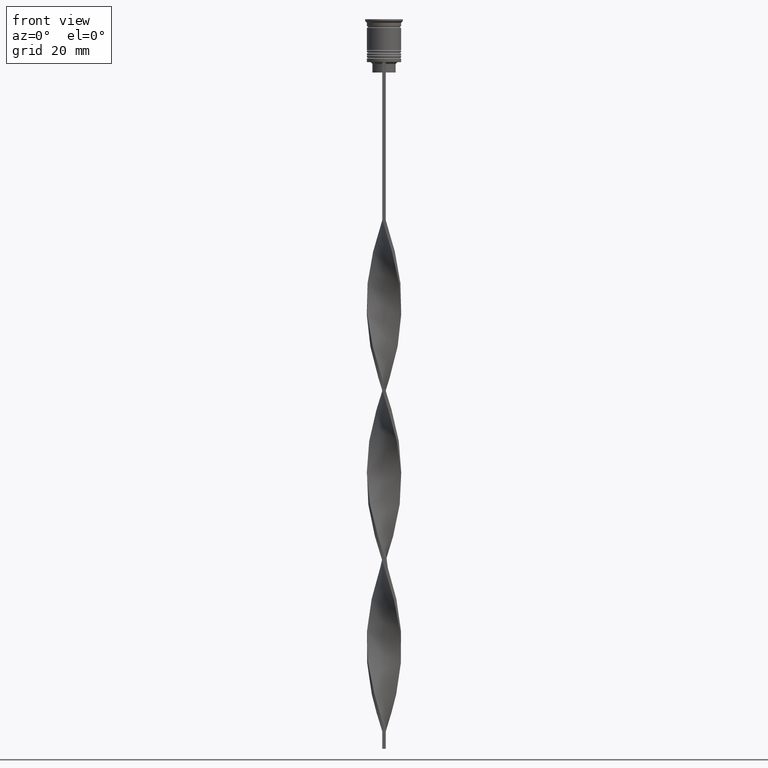
[diagram: clean part render]
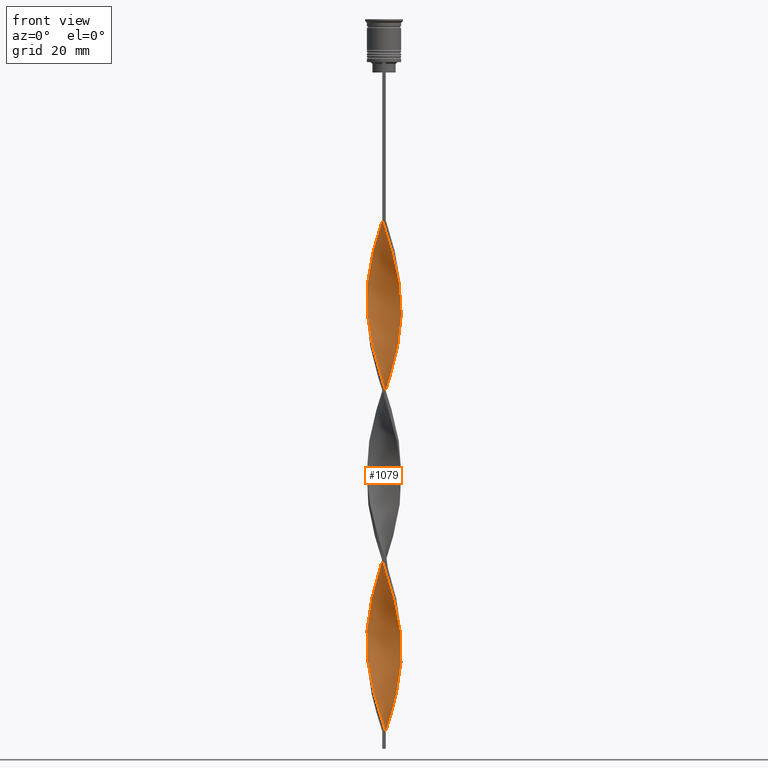
[diagram: same view with one face highlighted and labeled with its STEP entity id]
A machine part, front view. The second image highlights one B-rep face of the part: STEP entity #1079.
In plain terms, the highlighted face is a freeform B-spline surface patch.
Its self-contained STEP definition (entity closure, byte-faithful):
#12 = CARTESIAN_POINT ( 'NONE',  ( -4.698685634663579691, -1.781110133205161095, -140.3039215686274588 ) ) ;
#13 = CARTESIAN_POINT ( 'NONE',  ( 3.372583611396490433, 3.753996564375791323, -144.6862745098039227 ) ) ;
#18 = VECTOR ( 'NONE', #549, 1000.000000000000000 ) ;
#22 = CARTESIAN_POINT ( 'NONE',  ( 0.5000000000000006661, 4.999999999999999112, -108.1666666666666572 ) ) ;
#23 = CARTESIAN_POINT ( 'NONE',  ( 5.028189627835276454, 0.4290914677958227452, -86.25490196078432348 ) ) ;
#41 = CARTESIAN_POINT ( 'NONE',  ( -3.737982676843114582, -3.358196764280017010, -146.1470588235294201 ) ) ;
#47 = CARTESIAN_POINT ( 'NONE',  ( 1.857150046639457264, 4.692313302143462650, -103.7843137254901933 ) ) ;
#48 = CARTESIAN_POINT ( 'NONE',  ( 4.945959710900135420, 0.8874021287740047059, -87.71568627450979250 ) ) ;
#62 = CARTESIAN_POINT ( 'NONE',  ( 5.024805061206825130, 0.03652529083100763962, -131.5392156862745310 ) ) ;
#65 = CARTESIAN_POINT ( 'NONE',  ( -0.5000000000000000000, 5.000000000000000888, -58.50000000000000000 ) ) ;
#66 = CARTESIAN_POINT ( 'NONE',  ( -4.004954025026647102, 3.070367026697016222, -124.2352941176470580 ) ) ;
#67 = CARTESIAN_POINT ( 'NONE',  ( -0.8912038472716523607, 4.967148691534572613, -112.5490196078431495 ) ) ;
#85 = CARTESIAN_POINT ( 'NONE',  ( 4.932536701743520879, -0.9592088854640271611, -81.87254901960783116 ) ) ;
#88 = CARTESIAN_POINT ( 'NONE',  ( 0.4999999999999993339, -5.000000000000000888, -108.1666666666666572 ) ) ;
#93 = CARTESIAN_POINT ( 'NONE',  ( -4.843652908908672394, -1.416275721470217963, -185.5882352941176237 ) ) ;
#109 = CARTESIAN_POINT ( 'NONE',  ( 5.021420494578371141, -0.5021420494578375804, -83.33333333333332860 ) ) ;
#110 = CARTESIAN_POINT ( 'NONE',  ( 1.857150046639457264, 4.692313302143462650, -203.1176470588235361 ) ) ;
#111 = CARTESIAN_POINT ( 'NONE',  ( -0.03668176878985122263, 5.046331823121017024, -156.3725490196078454 ) ) ;
#113 = CARTESIAN_POINT ( 'NONE',  ( 4.863729793965000603, -1.345712789752187444, -127.1568627450980102 ) ) ;
#114 = CARTESIAN_POINT ( 'NONE',  ( -0.4272610392409010860, -5.006740257327794374, -204.5784313725490335 ) ) ;
#125 = CARTESIAN_POINT ( 'NONE',  ( 2.625363907848422773, -4.309788251477359111, -168.0588235294117680 ) ) ;
#126 = CARTESIAN_POINT ( 'NONE',  ( 1.788740585195520927, 4.718815268696140208, -150.5294117647058840 ) ) ;
#129 = VERTEX_POINT ( 'NONE', #231 ) ;
#131 = CARTESIAN_POINT ( 'NONE',  ( 0.5000000000000006661, 4.999999999999999112, -207.5000000000000000 ) ) ;
#132 = CARTESIAN_POINT ( 'NONE',  ( -1.339972216233586977, -4.842981980115355967, -102.3235294117646959 ) ) ;
#135 = CARTESIAN_POINT ( 'NONE',  ( -2.207052246521971739, -4.514301760086749660, -99.40196078431372939 ) ) ;
#145 = CARTESIAN_POINT ( 'NONE',  ( -3.057269382251586176, 3.987869597209393824, -166.5980392156862706 ) ) ;
#150 = CARTESIAN_POINT ( 'NONE',  ( 4.252947278887042160, -2.676273424560222214, -175.3627450980391984 ) ) ;
#151 = CARTESIAN_POINT ( 'NONE',  ( 4.843652908908672394, 1.416275721470218629, -135.9215686274509665 ) ) ;
#172 = CARTESIAN_POINT ( 'NONE',  ( -4.843652908908671506, 1.416275721470215743, -130.0784313725490335 ) ) ;
#173 = CARTESIAN_POINT ( 'NONE',  ( 2.687738844636429647, -4.271167325712944773, -115.4705882352941018 ) ) ;
#186 = CARTESIAN_POINT ( 'NONE',  ( 0.5000000000000006661, 4.999999999999999112, -207.5000000000000000 ) ) ;
#201 = CARTESIAN_POINT ( 'NONE',  ( 0.4999999999999993339, -5.000000000000000888, -108.1666666666666572 ) ) ;
#204 = CARTESIAN_POINT ( 'NONE',  ( -2.998973759622457713, -4.031892407926574329, -195.8137254901960773 ) ) ;
#222 = CARTESIAN_POINT ( 'NONE',  ( -3.737982676843114582, -3.358196764280017010, -146.1470588235294201 ) ) ;
#227 = CARTESIAN_POINT ( 'NONE',  ( -0.4272610392409010860, -5.006740257327794374, -105.2450980392156765 ) ) ;
#230 = CARTESIAN_POINT ( 'NONE',  ( -3.737982676843116359, 3.358196764280017454, -169.5196078431372371 ) ) ;
#231 = CARTESIAN_POINT ( 'NONE',  ( 0.4999999999999993339, -5.000000000000000888, -207.5000000000000000 ) ) ;
#242 = CARTESIAN_POINT ( 'NONE',  ( 1.339972216233586311, -4.842981980115355078, -163.6764705882352757 ) ) ;
#245 = CARTESIAN_POINT ( 'NONE',  ( -0.4272610392409010860, -5.006740257327794374, -204.5784313725490335 ) ) ;
#249 = CARTESIAN_POINT ( 'NONE',  ( 0.4999999999999993339, -5.000000000000000888, -207.5000000000000000 ) ) ;
#261 = CARTESIAN_POINT ( 'NONE',  ( 0.9633182312101483680, 4.953668176878984752, -206.0392156862745026 ) ) ;
#273 = CARTESIAN_POINT ( 'NONE',  ( -4.672296720828054362, -1.849227771946824417, -87.71568627450979250 ) ) ;
#301 = CARTESIAN_POINT ( 'NONE',  ( 0.5000000000000006661, 4.999999999999999112, -207.5000000000000000 ) ) ;
#306 = CARTESIAN_POINT ( 'NONE',  ( 4.500940532747439882, 2.282179822423429094, -138.8431372549019045 ) ) ;
#312 = CARTESIAN_POINT ( 'NONE',  ( 4.500940532747437217, -2.282179822423430426, -77.49019607843138147 ) ) ;
#332 = CARTESIAN_POINT ( 'NONE',  ( 1.788740585195520927, -4.718815268696137544, -65.80392156862745878 ) ) ;
#344 = CARTESIAN_POINT ( 'NONE',  ( -4.049165433819486459, -3.011821659854192923, -144.6862745098039227 ) ) ;
#373 = CARTESIAN_POINT ( 'NONE',  ( -2.687738844636427871, -4.271167325712944773, -150.5294117647058840 ) ) ;
#377 = CARTESIAN_POINT ( 'NONE',  ( -2.625363907848421885, 4.309788251477359111, -118.3921568627451109 ) ) ;
#380 = CARTESIAN_POINT ( 'NONE',  ( -2.207052246521971739, -4.514301760086749660, -198.7352941176470722 ) ) ;
#396 = CARTESIAN_POINT ( 'NONE',  ( 5.024805061206823353, -0.03652529083100791024, -84.79411764705882604 ) ) ;
#398 = CARTESIAN_POINT ( 'NONE',  ( 2.272444445637944010, -4.481740313928203712, -114.0098039215686185 ) ) ;
#407 = VERTEX_POINT ( 'NONE', #65 ) ;
#410 = CARTESIAN_POINT ( 'NONE',  ( 1.410234138924802538, 4.822990739511222813, -204.5784313725490335 ) ) ;
#411 = CARTESIAN_POINT ( 'NONE',  ( 3.372583611396489989, 3.753996564375790879, -144.6862745098039227 ) ) ;
#415 = CARTESIAN_POINT ( 'NONE',  ( 4.049165433819489124, -3.011821659854192035, -121.3137254901960631 ) ) ;
#431 = CARTESIAN_POINT ( 'NONE',  ( 0.9633182312101483680, 4.953668176878984752, -106.7058823529412024 ) ) ;
#434 = CARTESIAN_POINT ( 'NONE',  ( -3.688768818211570988, -3.412181795536401552, -93.55882352941176805 ) ) ;
#438 = CARTESIAN_POINT ( 'NONE',  ( 4.291403454590826172, -2.614164568256163612, -122.7745098039215605 ) ) ;
#446 = CARTESIAN_POINT ( 'NONE',  ( 4.932536701743520879, -0.9592088854640271611, -181.2058823529411598 ) ) ;
#451 = CARTESIAN_POINT ( 'NONE',  ( -5.021420494578372029, 0.5021420494578382465, -133.0000000000000000 ) ) ;
#452 = CARTESIAN_POINT ( 'NONE',  ( 4.698685634663582356, -1.781110133205159318, -125.6960784313725412 ) ) ;
#466 = CARTESIAN_POINT ( 'NONE',  ( 0.4272610392409006419, -5.006740257327792598, -160.7549019607842808 ) ) ;
#467 = CARTESIAN_POINT ( 'NONE',  ( -4.863729793965000603, 1.345712789752187666, -176.8235294117647243 ) ) ;
#471 = CARTESIAN_POINT ( 'NONE',  ( -4.049165433819489124, 3.011821659854192035, -71.64705882352942012 ) ) ;
#474 = CARTESIAN_POINT ( 'NONE',  ( -0.5000000000000000000, -4.999999999999999112, -58.50000000000000000 ) ) ;
#506 = CARTESIAN_POINT ( 'NONE',  ( -4.863729793965000603, 1.345712789752187666, -176.8235294117647243 ) ) ;
#514 = CARTESIAN_POINT ( 'NONE',  ( -4.004954025026648878, -3.070367026697016666, -92.09803921568628482 ) ) ;
#518 = CARTESIAN_POINT ( 'NONE',  ( 1.410234138924802538, 4.822990739511222813, -204.5784313725490335 ) ) ;
#519 = CARTESIAN_POINT ( 'NONE',  ( -4.863729793964999715, -1.345712789752185001, -138.8431372549019329 ) ) ;
#533 = B_SPLINE_CURVE_WITH_KNOTS ( 'NONE', 3,
 ( #186, #566, #1131, #2931 ),
 .UNSPECIFIED., .F., .F.,
 ( 4, 4 ),
 ( 0.000000000000000000, 1.000000000000000000 ),
 .UNSPECIFIED. ) ;
#542 = CARTESIAN_POINT ( 'NONE',  ( 4.698685634663579691, 1.781110133205159318, -189.9705882352941160 ) ) ;
#549 = DIRECTION ( 'NONE',  ( 0.000000000000000000, 1.000000000000000000, 0.000000000000000000 ) ) ;
#566 = CARTESIAN_POINT ( 'NONE',  ( 0.5000000000000002220, 1.666666666666666075, -207.5000000000000000 ) ) ;
#582 = CARTESIAN_POINT ( 'NONE',  ( -4.500940532747438994, -2.282179822423430871, -188.5098039215686185 ) ) ;
#590 = CARTESIAN_POINT ( 'NONE',  ( 2.998973759622455937, -4.031892407926573441, -70.18627450980390847 ) ) ;
#594 = CARTESIAN_POINT ( 'NONE',  ( -4.252947278887043936, -2.676273424560222658, -90.63725490196078738 ) ) ;
#618 = CARTESIAN_POINT ( 'NONE',  ( -2.998973759622457713, -4.031892407926574329, -96.48039215686274872 ) ) ;
#643 = CARTESIAN_POINT ( 'NONE',  ( 4.004954025026648878, 3.070367026697015778, -141.7647058823529562 ) ) ;
#647 = CARTESIAN_POINT ( 'NONE',  ( -0.5000000000000000000, -4.999999999999999112, -58.50000000000000000 ) ) ;
#649 = CARTESIAN_POINT ( 'NONE',  ( 4.533641475362163220, 2.216507476658134301, -92.09803921568628482 ) ) ;
#650 = CARTESIAN_POINT ( 'NONE',  ( 0.5000000000000006661, 4.999999999999999112, -108.1666666666666572 ) ) ;
#672 = CARTESIAN_POINT ( 'NONE',  ( 0.03668176878985084099, 5.046331823121014359, -109.6274509803921404 ) ) ;
#679 = CARTESIAN_POINT ( 'NONE',  ( -2.998973759622457713, -4.031892407926574329, -195.8137254901960773 ) ) ;
#707 = CARTESIAN_POINT ( 'NONE',  ( -4.049165433819489124, 3.011821659854192479, -170.9803921568627629 ) ) ;
#711 = CARTESIAN_POINT ( 'NONE',  ( -3.688768818211568323, 3.412181795536401552, -122.7745098039215605 ) ) ;
#712 = CARTESIAN_POINT ( 'NONE',  ( -2.207052246521971739, -4.514301760086749660, -99.40196078431372939 ) ) ;
#714 = CARTESIAN_POINT ( 'NONE',  ( -1.339972216233586977, -4.842981980115355967, -102.3235294117646959 ) ) ;
#728 = CARTESIAN_POINT ( 'NONE',  ( 2.272444445637942234, 4.481740313928202823, -102.3235294117646959 ) ) ;
#729 = CARTESIAN_POINT ( 'NONE',  ( 4.945959710900135420, 0.8874021287740047059, -187.0490196078431211 ) ) ;
#730 = CARTESIAN_POINT ( 'NONE',  ( 1.339972216233587421, 4.842981980115355967, -151.9901960784313530 ) ) ;
#731 = CARTESIAN_POINT ( 'NONE',  ( -1.410234138924802982, 4.822990739511224589, -61.42156862745097357 ) ) ;
#735 = CARTESIAN_POINT ( 'NONE',  ( 3.057269382251586620, -3.987869597209393824, -116.9313725490195992 ) ) ;
#746 = CARTESIAN_POINT ( 'NONE',  ( -0.9633182312101491451, 4.953668176878985641, -159.2941176470588118 ) ) ;
#753 = CARTESIAN_POINT ( 'NONE',  ( 4.500940532747436329, -2.282179822423430426, -176.8235294117647243 ) ) ;
#754 = CARTESIAN_POINT ( 'NONE',  ( 0.9633182312101494782, -4.953668176878985641, -109.6274509803921404 ) ) ;
#757 = CARTESIAN_POINT ( 'NONE',  ( -2.625363907848424105, -4.309788251477359999, -97.94117647058824616 ) ) ;
#764 = CARTESIAN_POINT ( 'NONE',  ( 4.672296720828052585, -1.849227771946823307, -178.2843137254901933 ) ) ;
#765 = CARTESIAN_POINT ( 'NONE',  ( 0.8912038472716545812, 4.967148691534573501, -153.4509803921568789 ) ) ;
#769 = CARTESIAN_POINT ( 'NONE',  ( 1.788740585195520927, -4.718815268696137544, -165.1372549019608016 ) ) ;
#770 = CARTESIAN_POINT ( 'NONE',  ( 4.049165433819489124, -3.011821659854191591, -121.3137254901960773 ) ) ;
#776 =( BOUNDED_SURFACE ( )  B_SPLINE_SURFACE ( 1, 2, ( 
 ( #474, #2018, #3542, #791, #3237, #2952, #1134, #3014, #590, #2740, #3662, #906, #3353, #312, #1524, #3393, #85, #109, #3438, #2228, #1323, #2558, #1304, #649, #2539, #3785, #3742, #1023, #1872, #1957, #728, #47, #3181, #431, #22, #2472, #1570, #3705, #3765, #3099, #3411, #377, #1593, #2819, #990, #66, #3559, #2911, #3501, #172, #2651, #1113, #1831, #3941, #1931, #1540, #12, #3700, #3094, #344, #41, #1256, #2183, #373, #1718, #2647, #2925, #3874, #1058, #1947, #466, #1702, #3854, #2885, #2867, #125, #3534, #2260, #1972, #782, #3194, #3514, #764, #2005, #446, #2590, #1354, #1680, #2903, #1380, #3226, #2086, #1143, #1735, #3303, #2730, #3979, #3049, #3653, #3004, #518, #261, #301 ),
 ( #1476, #3633, #1499, #897, #3322, #2123, #1125, #2061, #2707, #3932, #1517, #2340, #3278, #2986, #3574, #1166, #2394, #879, #3509, #2549, #273, #1450, #594, #514, #2643, #936, #618, #757, #135, #3478, #714, #3144, #227, #3162, #201, #1329, #1440, #2653, #398, #3789, #735, #2543, #3772, #415, #438, #2250, #1652, #113, #3075, #2128, #62, #1277, #3739, #2419, #1833, #306, #3983, #643, #1213, #13, #1295, #3494, #3515, #126, #1661, #765, #1989, #1337, #2532, #746, #2553, #2262, #3453, #1019, #145, #2591, #3821, #707, #1059, #3208, #3155, #467, #2612, #2904, #1382, #3836, #1311, #93, #2233, #582, #1825, #973, #3419, #1919, #679, #1903, #380, #1598, #2515, #1069, #114, #846, #249 ) ),
 .UNSPECIFIED., .F., .F., .F. ) 
 B_SPLINE_SURFACE_WITH_KNOTS ( ( 2, 2 ),
 ( 3, 2, 2, 2, 2, 2, 2, 2, 2, 2, 2, 2, 2, 2, 2, 2, 2, 2, 2, 2, 2, 2, 2, 2, 2, 2, 2, 2, 2, 2, 2, 2, 2, 2, 2, 2, 2, 2, 2, 2, 2, 2, 2, 2, 2, 2, 2, 2, 2, 2, 2, 3 ),
 ( 0.000000000000000000, 1.000000000000000000 ),
 ( 0.000000000000000000, 0.01470588235294117627, 0.02941176470588235253, 0.04411764705882353227, 0.05882352941176470507, 0.07352941176470588480, 0.08823529411764706454, 0.1029411764705882304, 0.1176470588235294101, 0.1323529411764705899, 0.1470588235294117696, 0.1617647058823529493, 0.1764705882352941291, 0.1911764705882352811, 0.2058823529411764608, 0.2205882352941176405, 0.2352941176470588203, 0.2500000000000000000, 0.2647058823529411797, 0.2794117647058823595, 0.2941176470588235392, 0.3088235294117647189, 0.3235294117647058987, 0.3382352941176470784, 0.3529411764705882582, 0.3676470588235294379, 0.3823529411764705621, 0.3970588235294117418, 0.4117647058823529216, 0.4264705882352941013, 0.4411764705882352811, 0.4558823529411764608, 0.4705882352941176405, 0.4852941176470588203, 0.5000000000000000000, 0.5147058823529411242, 0.5294117647058823595, 0.5441176470588234837, 0.5588235294117647189, 0.5735294117647058432, 0.5882352941176470784, 0.6029411764705882026, 0.6176470588235294379, 0.6323529411764705621, 0.6470588235294117974, 0.6617647058823529216, 0.6764705882352941568, 0.6911764705882352811, 0.7058823529411765163, 0.7205882352941176405, 0.7352941176470588758, 0.7500000000000000000 ),
 .UNSPECIFIED. ) 
 GEOMETRIC_REPRESENTATION_ITEM ( )  RATIONAL_B_SPLINE_SURFACE ( (
 ( 1.000000000000000000, 0.9957341762950344677, 1.000000000000000000, 0.9957341762950344677, 1.000000000000000000, 0.9957341762950344677, 1.000000000000000000, 0.9957341762950344677, 1.000000000000000000, 0.9957341762950344677, 1.000000000000000000, 0.9957341762950344677, 1.000000000000000000, 0.9957341762950344677, 1.000000000000000000, 0.9957341762950344677, 1.000000000000000000, 0.9957341762950344677, 1.000000000000000000, 0.9957341762950344677, 1.000000000000000000, 0.9957341762950344677, 1.000000000000000000, 0.9957341762950344677, 1.000000000000000000, 0.9957341762950344677, 1.000000000000000000, 0.9957341762950344677, 1.000000000000000000, 0.9957341762950344677, 1.000000000000000000, 0.9957341762950344677, 1.000000000000000000, 0.9957341762950344677, 1.000000000000000000, 0.9957341762950344677, 1.000000000000000000, 0.9957341762950344677, 1.000000000000000000, 0.9957341762950344677, 1.000000000000000000, 0.9957341762950344677, 1.000000000000000000, 0.9957341762950344677, 1.000000000000000000, 0.9957341762950344677, 1.000000000000000000, 0.9957341762950344677, 1.000000000000000000, 0.9957341762950344677, 1.000000000000000000, 0.9957341762950344677, 1.000000000000000000, 0.9957341762950344677, 1.000000000000000000, 0.9957341762950344677, 1.000000000000000000, 0.9957341762950344677, 1.000000000000000000, 0.9957341762950344677, 1.000000000000000000, 0.9957341762950344677, 1.000000000000000000, 0.9957341762950344677, 1.000000000000000000, 0.9957341762950344677, 1.000000000000000000, 0.9957341762950344677, 1.000000000000000000, 0.9957341762950344677, 1.000000000000000000, 0.9957341762950344677, 1.000000000000000000, 0.9957341762950344677, 1.000000000000000000, 0.9957341762950344677, 1.000000000000000000, 0.9957341762950344677, 1.000000000000000000, 0.9957341762950344677, 1.000000000000000000, 0.9957341762950344677, 1.000000000000000000, 0.9957341762950344677, 1.000000000000000000, 0.9957341762950344677, 1.000000000000000000, 0.9957341762950344677, 1.000000000000000000, 0.9957341762950344677, 1.000000000000000000, 0.9957341762950344677, 1.000000000000000000, 0.9957341762950344677, 1.000000000000000000, 0.9957341762950344677, 1.000000000000000000, 0.9957341762950344677, 1.000000000000000000, 0.9957341762950344677, 1.000000000000000000, 0.9957341762950344677, 1.000000000000000000),
 ( 1.000000000000000000, 0.9957341762950344677, 1.000000000000000000, 0.9957341762950344677, 1.000000000000000000, 0.9957341762950344677, 1.000000000000000000, 0.9957341762950344677, 1.000000000000000000, 0.9957341762950344677, 1.000000000000000000, 0.9957341762950344677, 1.000000000000000000, 0.9957341762950344677, 1.000000000000000000, 0.9957341762950344677, 1.000000000000000000, 0.9957341762950344677, 1.000000000000000000, 0.9957341762950344677, 1.000000000000000000, 0.9957341762950344677, 1.000000000000000000, 0.9957341762950344677, 1.000000000000000000, 0.9957341762950344677, 1.000000000000000000, 0.9957341762950344677, 1.000000000000000000, 0.9957341762950344677, 1.000000000000000000, 0.9957341762950344677, 1.000000000000000000, 0.9957341762950344677, 1.000000000000000000, 0.9957341762950344677, 1.000000000000000000, 0.9957341762950344677, 1.000000000000000000, 0.9957341762950344677, 1.000000000000000000, 0.9957341762950344677, 1.000000000000000000, 0.9957341762950344677, 1.000000000000000000, 0.9957341762950344677, 1.000000000000000000, 0.9957341762950344677, 1.000000000000000000, 0.9957341762950344677, 1.000000000000000000, 0.9957341762950344677, 1.000000000000000000, 0.9957341762950344677, 1.000000000000000000, 0.9957341762950344677, 1.000000000000000000, 0.9957341762950344677, 1.000000000000000000, 0.9957341762950344677, 1.000000000000000000, 0.9957341762950344677, 1.000000000000000000, 0.9957341762950344677, 1.000000000000000000, 0.9957341762950344677, 1.000000000000000000, 0.9957341762950344677, 1.000000000000000000, 0.9957341762950344677, 1.000000000000000000, 0.9957341762950344677, 1.000000000000000000, 0.9957341762950344677, 1.000000000000000000, 0.9957341762950344677, 1.000000000000000000, 0.9957341762950344677, 1.000000000000000000, 0.9957341762950344677, 1.000000000000000000, 0.9957341762950344677, 1.000000000000000000, 0.9957341762950344677, 1.000000000000000000, 0.9957341762950344677, 1.000000000000000000, 0.9957341762950344677, 1.000000000000000000, 0.9957341762950344677, 1.000000000000000000, 0.9957341762950344677, 1.000000000000000000, 0.9957341762950344677, 1.000000000000000000, 0.9957341762950344677, 1.000000000000000000, 0.9957341762950344677, 1.000000000000000000, 0.9957341762950344677, 1.000000000000000000, 0.9957341762950344677, 1.000000000000000000) ) ) 
 REPRESENTATION_ITEM ( '' )  SURFACE ( )  );
#782 = CARTESIAN_POINT ( 'NONE',  ( 4.004954025026647102, -3.070367026697014889, -173.9019607843137294 ) ) ;
#787 = CARTESIAN_POINT ( 'NONE',  ( 0.03668176878985187489, -5.046331823121017024, -106.7058823529411882 ) ) ;
#791 = CARTESIAN_POINT ( 'NONE',  ( 0.8912038472716523607, -4.967148691534572613, -62.88235294117647811 ) ) ;
#827 = CARTESIAN_POINT ( 'NONE',  ( -2.687738844636429647, 4.271167325712944773, -165.1372549019608016 ) ) ;
#837 = CARTESIAN_POINT ( 'NONE',  ( -4.698685634663579691, -1.781110133205161095, -140.3039215686274588 ) ) ;
#846 = CARTESIAN_POINT ( 'NONE',  ( 0.03668176878985188183, -5.046331823121017024, -206.0392156862745026 ) ) ;
#865 = CARTESIAN_POINT ( 'NONE',  ( -1.339972216233586977, -4.842981980115355967, -201.6568627450980387 ) ) ;
#879 = CARTESIAN_POINT ( 'NONE',  ( -5.021420494578372917, -0.5021420494578369143, -83.33333333333332860 ) ) ;
#897 = CARTESIAN_POINT ( 'NONE',  ( -1.857150046639456598, 4.692313302143463538, -62.88235294117647811 ) ) ;
#906 = CARTESIAN_POINT ( 'NONE',  ( 4.004954025026647102, -3.070367026697014889, -74.56862745098038658 ) ) ;
#933 = CARTESIAN_POINT ( 'NONE',  ( -4.252947278887043048, 2.676273424560220882, -125.6960784313725412 ) ) ;
#936 = CARTESIAN_POINT ( 'NONE',  ( -3.372583611396491321, -3.753996564375790879, -95.01960784313725128 ) ) ;
#952 = CARTESIAN_POINT ( 'NONE',  ( 3.426799919866743149, 3.704571868705843318, -97.94117647058824616 ) ) ;
#970 = CARTESIAN_POINT ( 'NONE',  ( 4.672296720828052585, -1.849227771946823307, -78.95098039215686470 ) ) ;
#973 = CARTESIAN_POINT ( 'NONE',  ( -4.004954025026648878, -3.070367026697016666, -191.4313725490196134 ) ) ;
#990 = CARTESIAN_POINT ( 'NONE',  ( -3.688768818211568323, 3.412181795536401552, -122.7745098039215605 ) ) ;
#1007 = CARTESIAN_POINT ( 'NONE',  ( 2.207052246521974403, 4.514301760086747883, -149.0686274509803866 ) ) ;
#1019 = CARTESIAN_POINT ( 'NONE',  ( -2.687738844636429203, 4.271167325712945662, -165.1372549019608016 ) ) ;
#1023 = CARTESIAN_POINT ( 'NONE',  ( 3.426799919866742705, 3.704571868705843318, -97.94117647058824616 ) ) ;
#1025 = CARTESIAN_POINT ( 'NONE',  ( 4.945959710900137196, -0.8874021287740062602, -128.6176470588235361 ) ) ;
#1026 = CARTESIAN_POINT ( 'NONE',  ( -0.5000000000000000000, 5.000000000000000888, -58.50000000000000000 ) ) ;
#1042 = CARTESIAN_POINT ( 'NONE',  ( -4.500940532747436329, 2.282179822423429982, -127.1568627450980244 ) ) ;
#1043 = CARTESIAN_POINT ( 'NONE',  ( -3.426799919866744482, 3.704571868705844206, -68.72549019607842524 ) ) ;
#1058 = CARTESIAN_POINT ( 'NONE',  ( -0.5000000000000000000, -4.999999999999999112, -157.8333333333333144 ) ) ;
#1059 = CARTESIAN_POINT ( 'NONE',  ( -4.291403454590826172, 2.614164568256163168, -172.4411764705882035 ) ) ;
#1065 = CARTESIAN_POINT ( 'NONE',  ( -4.945959710900135420, -0.8874021287740040398, -137.3823529411764639 ) ) ;
#1066 = CARTESIAN_POINT ( 'NONE',  ( 4.672296720828054362, 1.849227771946823751, -137.3823529411764639 ) ) ;
#1069 = CARTESIAN_POINT ( 'NONE',  ( -0.8912038472716539150, -4.967148691534573501, -203.1176470588235361 ) ) ;
#1079 = ADVANCED_FACE ( 'NONE', ( #3215 ), #776, .T. ) ;
#1080 = CARTESIAN_POINT ( 'NONE',  ( 3.426799919866743149, -3.704571868705845095, -118.3921568627451109 ) ) ;
#1092 = ORIENTED_EDGE ( 'NONE', *, *, #2810, .T. ) ;
#1093 = CARTESIAN_POINT ( 'NONE',  ( -2.272444445637943122, 4.481740313928203712, -163.6764705882352757 ) ) ;
#1113 = CARTESIAN_POINT ( 'NONE',  ( -5.021420494578371141, 0.5021420494578382465, -133.0000000000000000 ) ) ;
#1114 = CARTESIAN_POINT ( 'NONE',  ( -4.932536701743522656, -0.9592088854640269391, -184.1274509803921546 ) ) ;
#1125 = CARTESIAN_POINT ( 'NONE',  ( -3.057269382251586176, 3.987869597209393824, -67.26470588235292780 ) ) ;
#1126 = CARTESIAN_POINT ( 'NONE',  ( 4.843652908908670618, -1.416275721470217297, -179.7450980392157476 ) ) ;
#1131 = CARTESIAN_POINT ( 'NONE',  ( 0.4999999999999997780, -1.666666666666667851, -207.5000000000000000 ) ) ;
#1134 = CARTESIAN_POINT ( 'NONE',  ( 2.207052246521970851, -4.514301760086748772, -67.26470588235292780 ) ) ;
#1143 = CARTESIAN_POINT ( 'NONE',  ( 4.291403454590825284, 2.614164568256161392, -192.8921568627450824 ) ) ;
#1146 = CARTESIAN_POINT ( 'NONE',  ( 3.057269382251585288, 3.987869597209392936, -198.7352941176470722 ) ) ;
#1166 = CARTESIAN_POINT ( 'NONE',  ( -5.028189627835278230, 0.4290914677958227452, -80.41176470588234793 ) ) ;
#1172 =( BOUNDED_CURVE ( )  B_SPLINE_CURVE ( 2, ( #2800, #3988, #3100, #1916, #1595, #332, #1857, #3725, #2492, #1875, #1544, #1218, #1305, #2774, #970, #3706, #3142, #3439, #396, #23, #48, #1284, #1243, #1262, #2473, #3394, #2540, #952, #2820, #3414, #3125, #2189, #3376, #2172, #650, #672, #1900, #67, #2512, #3767, #3743, #2229, #3458, #2443, #711, #3684, #933, #1042, #1324, #2272, #3260, #451, #3826, #3804, #1065, #519, #837, #2368, #1763, #1457, #222, #2290, #3521, #3198, #2856, #2045, #2062, #1361, #1435, #3279, #1736, #2889, #242, #769, #2577, #2959, #1631, #3502, #2671, #1666, #150, #753, #3895, #1126, #1977, #3590, #1341, #2599, #729, #2353, #542, #2988, #2559, #2689, #3914, #3608, #1146, #1935, #3160, #110, #410, #3787, #131 ),
 .UNSPECIFIED., .F., .F. ) 
 B_SPLINE_CURVE_WITH_KNOTS ( ( 3, 2, 2, 2, 2, 2, 2, 2, 2, 2, 2, 2, 2, 2, 2, 2, 2, 2, 2, 2, 2, 2, 2, 2, 2, 2, 2, 2, 2, 2, 2, 2, 2, 2, 2, 2, 2, 2, 2, 2, 2, 2, 2, 2, 2, 2, 2, 2, 2, 2, 2, 3 ),
 ( 0.000000000000000000, 0.01470588235294117453, 0.02941176470588234906, 0.04411764705882353227, 0.05882352941176469813, 0.07352941176470588480, 0.08823529411764706454, 0.1029411764705882443, 0.1176470588235293963, 0.1323529411764705899, 0.1470588235294117696, 0.1617647058823529493, 0.1764705882352941291, 0.1911764705882352811, 0.2058823529411764885, 0.2205882352941176405, 0.2352941176470587925, 0.2500000000000000000, 0.2647058823529411797, 0.2794117647058823595, 0.2941176470588235392, 0.3088235294117647189, 0.3235294117647058987, 0.3382352941176470229, 0.3529411764705882582, 0.3676470588235294379, 0.3823529411764705621, 0.3970588235294117418, 0.4117647058823529771, 0.4264705882352941013, 0.4411764705882352811, 0.4558823529411764608, 0.4705882352941175850, 0.4852941176470588203, 0.5000000000000000000, 0.5147058823529411242, 0.5294117647058823595, 0.5441176470588234837, 0.5588235294117647189, 0.5735294117647058432, 0.5882352941176470784, 0.6029411764705882026, 0.6176470588235294379, 0.6323529411764705621, 0.6470588235294117974, 0.6617647058823529216, 0.6764705882352940458, 0.6911764705882351700, 0.7058823529411765163, 0.7205882352941176405, 0.7352941176470588758, 0.7500000000000000000 ),
 .UNSPECIFIED. ) 
 CURVE ( )  GEOMETRIC_REPRESENTATION_ITEM ( )  RATIONAL_B_SPLINE_CURVE ( ( 1.000000000000000000, 0.9957341762950344677, 1.000000000000000000, 0.9957341762950344677, 1.000000000000000000, 0.9957341762950344677, 1.000000000000000000, 0.9957341762950344677, 1.000000000000000000, 0.9957341762950344677, 1.000000000000000000, 0.9957341762950344677, 1.000000000000000000, 0.9957341762950344677, 1.000000000000000000, 0.9957341762950344677, 1.000000000000000000, 0.9957341762950344677, 1.000000000000000000, 0.9957341762950344677, 1.000000000000000000, 0.9957341762950344677, 1.000000000000000000, 0.9957341762950344677, 1.000000000000000000, 0.9957341762950344677, 1.000000000000000000, 0.9957341762950344677, 1.000000000000000000, 0.9957341762950344677, 1.000000000000000000, 0.9957341762950344677, 1.000000000000000000, 0.9957341762950344677, 1.000000000000000000, 0.9957341762950344677, 1.000000000000000000, 0.9957341762950344677, 1.000000000000000000, 0.9957341762950344677, 1.000000000000000000, 0.9957341762950344677, 1.000000000000000000, 0.9957341762950344677, 1.000000000000000000, 0.9957341762950344677, 1.000000000000000000, 0.9957341762950344677, 1.000000000000000000, 0.9957341762950344677, 1.000000000000000000, 0.9957341762950344677, 1.000000000000000000, 0.9957341762950344677, 1.000000000000000000, 0.9957341762950344677, 1.000000000000000000, 0.9957341762950344677, 1.000000000000000000, 0.9957341762950344677, 1.000000000000000000, 0.9957341762950344677, 1.000000000000000000, 0.9957341762950344677, 1.000000000000000000, 0.9957341762950344677, 1.000000000000000000, 0.9957341762950344677, 1.000000000000000000, 0.9957341762950344677, 1.000000000000000000, 0.9957341762950344677, 1.000000000000000000, 0.9957341762950344677, 1.000000000000000000, 0.9957341762950344677, 1.000000000000000000, 0.9957341762950344677, 1.000000000000000000, 0.9957341762950344677, 1.000000000000000000, 0.9957341762950344677, 1.000000000000000000, 0.9957341762950344677, 1.000000000000000000, 0.9957341762950344677, 1.000000000000000000, 0.9957341762950344677, 1.000000000000000000, 0.9957341762950344677, 1.000000000000000000, 0.9957341762950344677, 1.000000000000000000, 0.9957341762950344677, 1.000000000000000000, 0.9957341762950344677, 1.000000000000000000, 0.9957341762950344677, 1.000000000000000000, 0.9957341762950344677, 1.000000000000000000, 0.9957341762950344677, 1.000000000000000000 ) ) 
 REPRESENTATION_ITEM ( '' )  );
#1210 = CARTESIAN_POINT ( 'NONE',  ( 0.5000000000000006661, 4.999999999999999112, -207.5000000000000000 ) ) ;
#1213 = CARTESIAN_POINT ( 'NONE',  ( 3.688768818211571876, 3.412181795536401108, -143.2254901960784537 ) ) ;
#1216 = VERTEX_POINT ( 'NONE', #647 ) ;
#1218 = CARTESIAN_POINT ( 'NONE',  ( 4.004954025026647102, -3.070367026697014889, -74.56862745098038658 ) ) ;
#1243 = CARTESIAN_POINT ( 'NONE',  ( 4.698685634663579691, 1.781110133205159318, -90.63725490196078738 ) ) ;
#1256 = CARTESIAN_POINT ( 'NONE',  ( -3.426799919866743593, -3.704571868705841986, -147.6078431372548891 ) ) ;
#1262 = CARTESIAN_POINT ( 'NONE',  ( 4.533641475362163220, 2.216507476658134301, -92.09803921568628482 ) ) ;
#1277 = CARTESIAN_POINT ( 'NONE',  ( 5.021420494578372917, 0.5021420494578362481, -133.0000000000000000 ) ) ;
#1284 = CARTESIAN_POINT ( 'NONE',  ( 4.863729793964998827, 1.345712789752186556, -89.17647058823528994 ) ) ;
#1295 = CARTESIAN_POINT ( 'NONE',  ( 2.998973759622456825, 4.031892407926575217, -146.1470588235294201 ) ) ;
#1304 = CARTESIAN_POINT ( 'NONE',  ( 4.698685634663579691, 1.781110133205159318, -90.63725490196078738 ) ) ;
#1305 = CARTESIAN_POINT ( 'NONE',  ( 4.252947278887042160, -2.676273424560222214, -76.02941176470586981 ) ) ;
#1308 = CARTESIAN_POINT ( 'NONE',  ( -4.004954025026648878, -3.070367026697016666, -92.09803921568628482 ) ) ;
#1311 = CARTESIAN_POINT ( 'NONE',  ( -4.932536701743522656, -0.9592088854640269391, -184.1274509803921546 ) ) ;
#1323 = CARTESIAN_POINT ( 'NONE',  ( 4.945959710900135420, 0.8874021287740047059, -87.71568627450979250 ) ) ;
#1324 = CARTESIAN_POINT ( 'NONE',  ( -4.672296720828052585, 1.849227771946825083, -128.6176470588235361 ) ) ;
#1325 = CARTESIAN_POINT ( 'NONE',  ( 1.410234138924801650, -4.822990739511224589, -111.0882352941176379 ) ) ;
#1329 = CARTESIAN_POINT ( 'NONE',  ( 0.9633182312101494782, -4.953668176878985641, -109.6274509803921546 ) ) ;
#1337 = CARTESIAN_POINT ( 'NONE',  ( -0.03668176878985122263, 5.046331823121017024, -156.3725490196078454 ) ) ;
#1341 = CARTESIAN_POINT ( 'NONE',  ( 5.024805061206823353, -0.03652529083100791024, -184.1274509803921546 ) ) ;
#1342 = CARTESIAN_POINT ( 'NONE',  ( -5.021420494578373805, -0.5021420494578369143, -83.33333333333332860 ) ) ;
#1354 = CARTESIAN_POINT ( 'NONE',  ( 5.024805061206823353, -0.03652529083100791024, -184.1274509803921546 ) ) ;
#1361 = CARTESIAN_POINT ( 'NONE',  ( -0.9633182312101489231, -4.953668176878984752, -156.3725490196078454 ) ) ;
#1362 = CARTESIAN_POINT ( 'NONE',  ( -4.291403454590826172, 2.614164568256163168, -73.10784313725488914 ) ) ;
#1380 = CARTESIAN_POINT ( 'NONE',  ( 4.863729793964998827, 1.345712789752186556, -188.5098039215686185 ) ) ;
#1382 = CARTESIAN_POINT ( 'NONE',  ( -5.024805061206824242, -0.03652529083100704288, -181.2058823529411598 ) ) ;
#1387 = CARTESIAN_POINT ( 'NONE',  ( 4.863729793965000603, -1.345712789752187444, -127.1568627450980244 ) ) ;
#1415 = CARTESIAN_POINT ( 'NONE',  ( -4.252947278887043936, -2.676273424560222658, -189.9705882352941160 ) ) ;
#1435 = CARTESIAN_POINT ( 'NONE',  ( -0.5000000000000000000, -4.999999999999999112, -157.8333333333333144 ) ) ;
#1440 = CARTESIAN_POINT ( 'NONE',  ( 1.410234138924801650, -4.822990739511224589, -111.0882352941176379 ) ) ;
#1441 = CARTESIAN_POINT ( 'NONE',  ( -0.5000000000000000000, -4.999999999999999112, -58.50000000000000000 ) ) ;
#1450 = CARTESIAN_POINT ( 'NONE',  ( -4.500940532747438994, -2.282179822423430871, -89.17647058823527573 ) ) ;
#1457 = CARTESIAN_POINT ( 'NONE',  ( -4.049165433819486459, -3.011821659854192479, -144.6862745098039227 ) ) ;
#1476 = CARTESIAN_POINT ( 'NONE',  ( -0.5000000000000000000, 5.000000000000000888, -58.50000000000000000 ) ) ;
#1499 = CARTESIAN_POINT ( 'NONE',  ( -1.410234138924802982, 4.822990739511224589, -61.42156862745097357 ) ) ;
#1517 = CARTESIAN_POINT ( 'NONE',  ( -4.291403454590826172, 2.614164568256163168, -73.10784313725488914 ) ) ;
#1524 = CARTESIAN_POINT ( 'NONE',  ( 4.672296720828052585, -1.849227771946823307, -78.95098039215686470 ) ) ;
#1540 = CARTESIAN_POINT ( 'NONE',  ( -4.863729793964999715, -1.345712789752185223, -138.8431372549019045 ) ) ;
#1544 = CARTESIAN_POINT ( 'NONE',  ( 3.688768818211569211, -3.412181795536401108, -73.10784313725488914 ) ) ;
#1570 = CARTESIAN_POINT ( 'NONE',  ( -0.4272610392408995317, 5.006740257327792598, -111.0882352941176379 ) ) ;
#1593 = CARTESIAN_POINT ( 'NONE',  ( -2.998973759622455937, 4.031892407926573441, -119.8529411764705799 ) ) ;
#1595 = CARTESIAN_POINT ( 'NONE',  ( 1.339972216233586311, -4.842981980115355078, -64.34313725490196134 ) ) ;
#1598 = CARTESIAN_POINT ( 'NONE',  ( -1.788740585195522481, -4.718815268696138432, -200.1960784313725981 ) ) ;
#1614 = CARTESIAN_POINT ( 'NONE',  ( 1.788740585195520927, 4.718815268696140208, -150.5294117647058840 ) ) ;
#1631 = CARTESIAN_POINT ( 'NONE',  ( 2.998973759622455937, -4.031892407926573441, -169.5196078431372371 ) ) ;
#1633 = CARTESIAN_POINT ( 'NONE',  ( 0.4272610392408995317, 5.006740257327794374, -154.9117647058823479 ) ) ;
#1649 = CARTESIAN_POINT ( 'NONE',  ( 4.291403454590826172, -2.614164568256163612, -122.7745098039215605 ) ) ;
#1652 = CARTESIAN_POINT ( 'NONE',  ( 4.698685634663582356, -1.781110133205159318, -125.6960784313725412 ) ) ;
#1661 = CARTESIAN_POINT ( 'NONE',  ( 1.339972216233587421, 4.842981980115355967, -151.9901960784313530 ) ) ;
#1666 = CARTESIAN_POINT ( 'NONE',  ( 4.004954025026647102, -3.070367026697014889, -173.9019607843137294 ) ) ;
#1667 = CARTESIAN_POINT ( 'NONE',  ( 4.932536701743522656, 0.9592088854640251627, -134.4607843137254974 ) ) ;
#1680 = CARTESIAN_POINT ( 'NONE',  ( 5.028189627835276454, 0.4290914677958227452, -185.5882352941176237 ) ) ;
#1687 = CARTESIAN_POINT ( 'NONE',  ( -3.057269382251586176, 3.987869597209393824, -67.26470588235292780 ) ) ;
#1702 = CARTESIAN_POINT ( 'NONE',  ( 0.8912038472716523607, -4.967148691534572613, -162.2156862745098351 ) ) ;
#1707 = CARTESIAN_POINT ( 'NONE',  ( -4.945959710900137196, 0.8874021287740044839, -178.2843137254901933 ) ) ;
#1718 = CARTESIAN_POINT ( 'NONE',  ( -2.272444445637942678, -4.481740313928202823, -151.9901960784313530 ) ) ;
#1724 = CARTESIAN_POINT ( 'NONE',  ( -4.533641475362164996, 2.216507476658134301, -173.9019607843137294 ) ) ;
#1735 = CARTESIAN_POINT ( 'NONE',  ( 4.049165433819487347, 3.011821659854191147, -194.3529411764705799 ) ) ;
#1736 = CARTESIAN_POINT ( 'NONE',  ( 0.4272610392409006419, -5.006740257327792598, -160.7549019607842808 ) ) ;
#1741 = CARTESIAN_POINT ( 'NONE',  ( -2.625363907848424105, -4.309788251477359999, -197.2745098039215463 ) ) ;
#1763 = CARTESIAN_POINT ( 'NONE',  ( -4.291403454590826172, -2.614164568256160948, -143.2254901960784537 ) ) ;
#1768 = CARTESIAN_POINT ( 'NONE',  ( -0.9633182312101491451, 4.953668176878985641, -159.2941176470588118 ) ) ;
#1785 = ORIENTED_EDGE ( 'NONE', *, *, #1799, .F. ) ;
#1799 = EDGE_CURVE ( 'NONE', #1216, #1882, #1172, .T. ) ;
#1825 = CARTESIAN_POINT ( 'NONE',  ( -4.252947278887043936, -2.676273424560222658, -189.9705882352941160 ) ) ;
#1831 = CARTESIAN_POINT ( 'NONE',  ( -5.024805061206823353, 0.03652529083100964497, -134.4607843137254974 ) ) ;
#1833 = CARTESIAN_POINT ( 'NONE',  ( 4.672296720828054362, 1.849227771946823751, -137.3823529411764639 ) ) ;
#1857 = CARTESIAN_POINT ( 'NONE',  ( 2.207052246521970851, -4.514301760086748772, -67.26470588235292780 ) ) ;
#1872 = CARTESIAN_POINT ( 'NONE',  ( 3.057269382251585288, 3.987869597209392936, -99.40196078431372939 ) ) ;
#1875 = CARTESIAN_POINT ( 'NONE',  ( 3.372583611396490433, -3.753996564375789102, -71.64705882352942012 ) ) ;
#1882 = VERTEX_POINT ( 'NONE', #1210 ) ;
#1900 = CARTESIAN_POINT ( 'NONE',  ( -0.4272610392408995317, 5.006740257327792598, -111.0882352941176379 ) ) ;
#1903 = CARTESIAN_POINT ( 'NONE',  ( -2.625363907848424105, -4.309788251477359999, -197.2745098039215463 ) ) ;
#1916 = CARTESIAN_POINT ( 'NONE',  ( 0.8912038472716523607, -4.967148691534572613, -62.88235294117647101 ) ) ;
#1919 = CARTESIAN_POINT ( 'NONE',  ( -3.372583611396491321, -3.753996564375790879, -194.3529411764705799 ) ) ;
#1931 = CARTESIAN_POINT ( 'NONE',  ( -4.945959710900135420, -0.8874021287740040398, -137.3823529411764639 ) ) ;
#1935 = CARTESIAN_POINT ( 'NONE',  ( 2.687738844636429203, 4.271167325712942997, -200.1960784313725696 ) ) ;
#1936 = CARTESIAN_POINT ( 'NONE',  ( -0.8912038472716539150, -4.967148691534573501, -103.7843137254901791 ) ) ;
#1947 = CARTESIAN_POINT ( 'NONE',  ( -0.03668176878985122263, -5.046331823121014359, -159.2941176470588118 ) ) ;
#1957 = CARTESIAN_POINT ( 'NONE',  ( 2.687738844636428759, 4.271167325712943885, -100.8627450980392126 ) ) ;
#1960 = CARTESIAN_POINT ( 'NONE',  ( -0.5000000000000000000, 5.000000000000000888, -157.8333333333333144 ) ) ;
#1962 = CARTESIAN_POINT ( 'NONE',  ( -1.857150046639456598, 4.692313302143463538, -62.88235294117647101 ) ) ;
#1972 = CARTESIAN_POINT ( 'NONE',  ( 3.688768818211569211, -3.412181795536401108, -172.4411764705882035 ) ) ;
#1977 = CARTESIAN_POINT ( 'NONE',  ( 4.932536701743520879, -0.9592088854640271611, -181.2058823529411598 ) ) ;
#1979 = CARTESIAN_POINT ( 'NONE',  ( -4.252947278887043936, -2.676273424560222658, -90.63725490196078738 ) ) ;
#1989 = CARTESIAN_POINT ( 'NONE',  ( 0.4272610392408995317, 5.006740257327794374, -154.9117647058823479 ) ) ;
#1993 = CARTESIAN_POINT ( 'NONE',  ( 4.500940532747438994, 2.282179822423429538, -138.8431372549019329 ) ) ;
#2005 = CARTESIAN_POINT ( 'NONE',  ( 4.843652908908670618, -1.416275721470217519, -179.7450980392157192 ) ) ;
#2013 = CARTESIAN_POINT ( 'NONE',  ( -4.945959710900137196, 0.8874021287740044839, -78.95098039215686470 ) ) ;
#2018 = CARTESIAN_POINT ( 'NONE',  ( -0.03668176878985122263, -5.046331823121014359, -59.96078431372549744 ) ) ;
#2032 = CARTESIAN_POINT ( 'NONE',  ( -3.426799919866744482, 3.704571868705844206, -168.0588235294117680 ) ) ;
#2045 = CARTESIAN_POINT ( 'NONE',  ( -1.857150046639457930, -4.692313302143461762, -153.4509803921568789 ) ) ;
#2049 = CARTESIAN_POINT ( 'NONE',  ( -1.788740585195522481, -4.718815268696138432, -200.1960784313725696 ) ) ;
#2061 = CARTESIAN_POINT ( 'NONE',  ( -3.426799919866744037, 3.704571868705844206, -68.72549019607842524 ) ) ;
#2062 = CARTESIAN_POINT ( 'NONE',  ( -1.410234138924801206, -4.822990739511222813, -154.9117647058823479 ) ) ;
#2065 = CARTESIAN_POINT ( 'NONE',  ( -4.698685634663581467, 1.781110133205160651, -175.3627450980391984 ) ) ;
#2086 = CARTESIAN_POINT ( 'NONE',  ( 4.533641475362163220, 2.216507476658134301, -191.4313725490196134 ) ) ;
#2091 = CARTESIAN_POINT ( 'NONE',  ( 0.4999999999999993339, -5.000000000000000888, -207.5000000000000000 ) ) ;
#2109 = LINE ( 'NONE', #1441, #18 ) ;
#2111 = EDGE_LOOP ( 'NONE', ( #1092, #2142, #2509, #1785 ) ) ;
#2123 = CARTESIAN_POINT ( 'NONE',  ( -2.687738844636429203, 4.271167325712945662, -65.80392156862747299 ) ) ;
#2128 = CARTESIAN_POINT ( 'NONE',  ( 5.028189627835277342, -0.4290914677958209134, -130.0784313725490335 ) ) ;
#2142 = ORIENTED_EDGE ( 'NONE', *, *, #2758, .T. ) ;
#2172 = CARTESIAN_POINT ( 'NONE',  ( 0.9633182312101482569, 4.953668176878984752, -106.7058823529411882 ) ) ;
#2183 = CARTESIAN_POINT ( 'NONE',  ( -3.057269382251587064, -3.987869597209391159, -149.0686274509803866 ) ) ;
#2189 = CARTESIAN_POINT ( 'NONE',  ( 1.857150046639457264, 4.692313302143462650, -103.7843137254901791 ) ) ;
#2228 = CARTESIAN_POINT ( 'NONE',  ( 5.028189627835276454, 0.4290914677958227452, -86.25490196078432348 ) ) ;
#2229 = CARTESIAN_POINT ( 'NONE',  ( -2.625363907848421885, 4.309788251477359111, -118.3921568627451109 ) ) ;
#2230 = CARTESIAN_POINT ( 'NONE',  ( 5.021420494578373805, 0.5021420494578362481, -133.0000000000000000 ) ) ;
#2233 = CARTESIAN_POINT ( 'NONE',  ( -4.672296720828054362, -1.849227771946824417, -187.0490196078431211 ) ) ;
#2248 = CARTESIAN_POINT ( 'NONE',  ( -4.500940532747438105, -2.282179822423430871, -89.17647058823528994 ) ) ;
#2250 = CARTESIAN_POINT ( 'NONE',  ( 4.533641475362164108, -2.216507476658135634, -124.2352941176470580 ) ) ;
#2260 = CARTESIAN_POINT ( 'NONE',  ( 3.372583611396490877, -3.753996564375789102, -170.9803921568627629 ) ) ;
#2262 = CARTESIAN_POINT ( 'NONE',  ( -1.857150046639456598, 4.692313302143463538, -162.2156862745098351 ) ) ;
#2272 = CARTESIAN_POINT ( 'NONE',  ( -4.843652908908671506, 1.416275721470215743, -130.0784313725490335 ) ) ;
#2274 = CARTESIAN_POINT ( 'NONE',  ( -0.4272610392409010860, -5.006740257327794374, -105.2450980392156765 ) ) ;
#2290 = CARTESIAN_POINT ( 'NONE',  ( -3.426799919866744037, -3.704571868705841986, -147.6078431372548891 ) ) ;
#2291 = CARTESIAN_POINT ( 'NONE',  ( -2.687738844636429647, 4.271167325712944773, -65.80392156862745878 ) ) ;
#2301 =( BOUNDED_CURVE ( )  B_SPLINE_CURVE ( 2, ( #1026, #3477, #731, #1962, #3184, #2291, #1687, #1043, #3827, #471, #1362, #2578, #3843, #3199, #2013, #3183, #2304, #1342, #2858, #2560, #3476, #2248, #1979, #1308, #434, #2890, #3806, #2872, #712, #3503, #132, #1936, #2274, #787, #88, #754, #1325, #2913, #3523, #173, #3234, #1080, #3459, #770, #1649, #2541, #452, #1387, #1025, #3788, #3768, #2230, #1667, #151, #1066, #1993, #2600, #2619, #3161, #411, #3212, #3538, #1007, #1614, #730, #2837, #1633, #111, #1960, #1768, #3578, #2356, #1093, #827, #2673, #2032, #230, #2991, #2654, #1724, #2065, #506, #1707, #3010, #2948, #3596, #1114, #3308, #2374, #3617, #1415, #3265, #3636, #2693, #204, #1741, #3882, #2049, #865, #2343, #245, #2398, #2091 ),
 .UNSPECIFIED., .F., .F. ) 
 B_SPLINE_CURVE_WITH_KNOTS ( ( 3, 2, 2, 2, 2, 2, 2, 2, 2, 2, 2, 2, 2, 2, 2, 2, 2, 2, 2, 2, 2, 2, 2, 2, 2, 2, 2, 2, 2, 2, 2, 2, 2, 2, 2, 2, 2, 2, 2, 2, 2, 2, 2, 2, 2, 2, 2, 2, 2, 2, 2, 3 ),
 ( 0.000000000000000000, 0.01470588235294117453, 0.02941176470588234906, 0.04411764705882353227, 0.05882352941176469813, 0.07352941176470588480, 0.08823529411764706454, 0.1029411764705882443, 0.1176470588235293963, 0.1323529411764705899, 0.1470588235294117696, 0.1617647058823529493, 0.1764705882352941291, 0.1911764705882352811, 0.2058823529411764885, 0.2205882352941176405, 0.2352941176470587925, 0.2500000000000000000, 0.2647058823529411797, 0.2794117647058823595, 0.2941176470588235392, 0.3088235294117647189, 0.3235294117647058987, 0.3382352941176470229, 0.3529411764705882582, 0.3676470588235294379, 0.3823529411764705621, 0.3970588235294117418, 0.4117647058823529771, 0.4264705882352941013, 0.4411764705882352811, 0.4558823529411764608, 0.4705882352941175850, 0.4852941176470588203, 0.5000000000000000000, 0.5147058823529411242, 0.5294117647058823595, 0.5441176470588234837, 0.5588235294117647189, 0.5735294117647058432, 0.5882352941176470784, 0.6029411764705882026, 0.6176470588235294379, 0.6323529411764705621, 0.6470588235294117974, 0.6617647058823529216, 0.6764705882352940458, 0.6911764705882351700, 0.7058823529411765163, 0.7205882352941176405, 0.7352941176470588758, 0.7500000000000000000 ),
 .UNSPECIFIED. ) 
 CURVE ( )  GEOMETRIC_REPRESENTATION_ITEM ( )  RATIONAL_B_SPLINE_CURVE ( ( 1.000000000000000000, 0.9957341762950344677, 1.000000000000000000, 0.9957341762950344677, 1.000000000000000000, 0.9957341762950344677, 1.000000000000000000, 0.9957341762950344677, 1.000000000000000000, 0.9957341762950344677, 1.000000000000000000, 0.9957341762950344677, 1.000000000000000000, 0.9957341762950344677, 1.000000000000000000, 0.9957341762950344677, 1.000000000000000000, 0.9957341762950344677, 1.000000000000000000, 0.9957341762950344677, 1.000000000000000000, 0.9957341762950344677, 1.000000000000000000, 0.9957341762950344677, 1.000000000000000000, 0.9957341762950344677, 1.000000000000000000, 0.9957341762950344677, 1.000000000000000000, 0.9957341762950344677, 1.000000000000000000, 0.9957341762950344677, 1.000000000000000000, 0.9957341762950344677, 1.000000000000000000, 0.9957341762950344677, 1.000000000000000000, 0.9957341762950344677, 1.000000000000000000, 0.9957341762950344677, 1.000000000000000000, 0.9957341762950344677, 1.000000000000000000, 0.9957341762950344677, 1.000000000000000000, 0.9957341762950344677, 1.000000000000000000, 0.9957341762950344677, 1.000000000000000000, 0.9957341762950344677, 1.000000000000000000, 0.9957341762950344677, 1.000000000000000000, 0.9957341762950344677, 1.000000000000000000, 0.9957341762950344677, 1.000000000000000000, 0.9957341762950344677, 1.000000000000000000, 0.9957341762950344677, 1.000000000000000000, 0.9957341762950344677, 1.000000000000000000, 0.9957341762950344677, 1.000000000000000000, 0.9957341762950344677, 1.000000000000000000, 0.9957341762950344677, 1.000000000000000000, 0.9957341762950344677, 1.000000000000000000, 0.9957341762950344677, 1.000000000000000000, 0.9957341762950344677, 1.000000000000000000, 0.9957341762950344677, 1.000000000000000000, 0.9957341762950344677, 1.000000000000000000, 0.9957341762950344677, 1.000000000000000000, 0.9957341762950344677, 1.000000000000000000, 0.9957341762950344677, 1.000000000000000000, 0.9957341762950344677, 1.000000000000000000, 0.9957341762950344677, 1.000000000000000000, 0.9957341762950344677, 1.000000000000000000, 0.9957341762950344677, 1.000000000000000000, 0.9957341762950344677, 1.000000000000000000, 0.9957341762950344677, 1.000000000000000000, 0.9957341762950344677, 1.000000000000000000, 0.9957341762950344677, 1.000000000000000000, 0.9957341762950344677, 1.000000000000000000 ) ) 
 REPRESENTATION_ITEM ( '' )  );
#2304 = CARTESIAN_POINT ( 'NONE',  ( -5.024805061206824242, -0.03652529083100704288, -81.87254901960783116 ) ) ;
#2340 = CARTESIAN_POINT ( 'NONE',  ( -4.533641475362164996, 2.216507476658134301, -74.56862745098038658 ) ) ;
#2343 = CARTESIAN_POINT ( 'NONE',  ( -0.8912038472716539150, -4.967148691534573501, -203.1176470588235361 ) ) ;
#2353 = CARTESIAN_POINT ( 'NONE',  ( 4.863729793964998827, 1.345712789752186556, -188.5098039215686185 ) ) ;
#2356 = CARTESIAN_POINT ( 'NONE',  ( -1.857150046639456598, 4.692313302143463538, -162.2156862745098351 ) ) ;
#2368 = CARTESIAN_POINT ( 'NONE',  ( -4.533641475362163220, -2.216507476658133413, -141.7647058823529562 ) ) ;
#2374 = CARTESIAN_POINT ( 'NONE',  ( -4.672296720828054362, -1.849227771946824417, -187.0490196078431211 ) ) ;
#2394 = CARTESIAN_POINT ( 'NONE',  ( -5.024805061206824242, -0.03652529083100704288, -81.87254901960783116 ) ) ;
#2398 = CARTESIAN_POINT ( 'NONE',  ( 0.03668176878985187489, -5.046331823121017024, -206.0392156862745026 ) ) ;
#2419 = CARTESIAN_POINT ( 'NONE',  ( 4.843652908908672394, 1.416275721470218629, -135.9215686274509665 ) ) ;
#2443 = CARTESIAN_POINT ( 'NONE',  ( -3.372583611396490877, 3.753996564375788658, -121.3137254901960773 ) ) ;
#2472 = CARTESIAN_POINT ( 'NONE',  ( 0.03668176878985084099, 5.046331823121014359, -109.6274509803921546 ) ) ;
#2473 = CARTESIAN_POINT ( 'NONE',  ( 4.291403454590825284, 2.614164568256161392, -93.55882352941176805 ) ) ;
#2492 = CARTESIAN_POINT ( 'NONE',  ( 2.998973759622455937, -4.031892407926573441, -70.18627450980390847 ) ) ;
#2509 = ORIENTED_EDGE ( 'NONE', *, *, #2759, .F. ) ;
#2512 = CARTESIAN_POINT ( 'NONE',  ( -1.339972216233587421, 4.842981980115354190, -114.0098039215686185 ) ) ;
#2515 = CARTESIAN_POINT ( 'NONE',  ( -1.339972216233586977, -4.842981980115355967, -201.6568627450980387 ) ) ;
#2532 = CARTESIAN_POINT ( 'NONE',  ( -0.5000000000000000000, 5.000000000000000888, -157.8333333333333144 ) ) ;
#2539 = CARTESIAN_POINT ( 'NONE',  ( 4.291403454590825284, 2.614164568256161392, -93.55882352941176805 ) ) ;
#2540 = CARTESIAN_POINT ( 'NONE',  ( 3.737982676843115915, 3.358196764280015678, -96.48039215686274872 ) ) ;
#2541 = CARTESIAN_POINT ( 'NONE',  ( 4.533641475362164108, -2.216507476658135634, -124.2352941176470580 ) ) ;
#2543 = CARTESIAN_POINT ( 'NONE',  ( 3.426799919866742705, -3.704571868705845095, -118.3921568627451109 ) ) ;
#2549 = CARTESIAN_POINT ( 'NONE',  ( -4.843652908908672394, -1.416275721470217963, -86.25490196078432348 ) ) ;
#2553 = CARTESIAN_POINT ( 'NONE',  ( -1.410234138924802982, 4.822990739511224589, -160.7549019607842808 ) ) ;
#2558 = CARTESIAN_POINT ( 'NONE',  ( 4.863729793964998827, 1.345712789752186556, -89.17647058823527573 ) ) ;
#2559 = CARTESIAN_POINT ( 'NONE',  ( 4.291403454590825284, 2.614164568256161392, -192.8921568627450824 ) ) ;
#2560 = CARTESIAN_POINT ( 'NONE',  ( -4.843652908908672394, -1.416275721470217963, -86.25490196078432348 ) ) ;
#2577 = CARTESIAN_POINT ( 'NONE',  ( 2.207052246521970851, -4.514301760086748772, -166.5980392156862706 ) ) ;
#2578 = CARTESIAN_POINT ( 'NONE',  ( -4.533641475362164996, 2.216507476658134301, -74.56862745098038658 ) ) ;
#2590 = CARTESIAN_POINT ( 'NONE',  ( 5.021420494578371141, -0.5021420494578375804, -182.6666666666666572 ) ) ;
#2591 = CARTESIAN_POINT ( 'NONE',  ( -3.426799919866744037, 3.704571868705844206, -168.0588235294117680 ) ) ;
#2599 = CARTESIAN_POINT ( 'NONE',  ( 5.028189627835276454, 0.4290914677958227452, -185.5882352941176237 ) ) ;
#2600 = CARTESIAN_POINT ( 'NONE',  ( 4.252947278887043048, 2.676273424560224434, -140.3039215686274588 ) ) ;
#2612 = CARTESIAN_POINT ( 'NONE',  ( -4.945959710900137196, 0.8874021287740044839, -178.2843137254901933 ) ) ;
#2619 = CARTESIAN_POINT ( 'NONE',  ( 4.004954025026648878, 3.070367026697015778, -141.7647058823529562 ) ) ;
#2643 = CARTESIAN_POINT ( 'NONE',  ( -3.688768818211570988, -3.412181795536401552, -93.55882352941176805 ) ) ;
#2647 = CARTESIAN_POINT ( 'NONE',  ( -1.857150046639457930, -4.692313302143461762, -153.4509803921568789 ) ) ;
#2651 = CARTESIAN_POINT ( 'NONE',  ( -4.932536701743520879, 0.9592088854640268281, -131.5392156862745310 ) ) ;
#2653 = CARTESIAN_POINT ( 'NONE',  ( 1.857150046639456598, -4.692313302143463538, -112.5490196078431495 ) ) ;
#2654 = CARTESIAN_POINT ( 'NONE',  ( -4.291403454590826172, 2.614164568256163168, -172.4411764705882035 ) ) ;
#2671 = CARTESIAN_POINT ( 'NONE',  ( 3.688768818211569211, -3.412181795536401108, -172.4411764705882035 ) ) ;
#2673 = CARTESIAN_POINT ( 'NONE',  ( -3.057269382251586176, 3.987869597209393824, -166.5980392156862706 ) ) ;
#2689 = CARTESIAN_POINT ( 'NONE',  ( 4.049165433819487347, 3.011821659854190703, -194.3529411764705799 ) ) ;
#2693 = CARTESIAN_POINT ( 'NONE',  ( -3.372583611396491321, -3.753996564375790435, -194.3529411764705799 ) ) ;
#2707 = CARTESIAN_POINT ( 'NONE',  ( -3.737982676843116359, 3.358196764280017454, -70.18627450980390847 ) ) ;
#2730 = CARTESIAN_POINT ( 'NONE',  ( 3.426799919866742705, 3.704571868705843318, -197.2745098039215463 ) ) ;
#2740 = CARTESIAN_POINT ( 'NONE',  ( 3.372583611396490877, -3.753996564375789102, -71.64705882352943433 ) ) ;
#2758 = EDGE_CURVE ( 'NONE', #407, #129, #2301, .T. ) ;
#2759 = EDGE_CURVE ( 'NONE', #1882, #129, #533, .T. ) ;
#2774 = CARTESIAN_POINT ( 'NONE',  ( 4.500940532747436329, -2.282179822423430426, -77.49019607843136725 ) ) ;
#2800 = CARTESIAN_POINT ( 'NONE',  ( -0.5000000000000000000, -4.999999999999999112, -58.50000000000000000 ) ) ;
#2810 = EDGE_CURVE ( 'NONE', #1216, #407, #2109, .T. ) ;
#2819 = CARTESIAN_POINT ( 'NONE',  ( -3.372583611396490877, 3.753996564375788658, -121.3137254901960631 ) ) ;
#2820 = CARTESIAN_POINT ( 'NONE',  ( 3.057269382251585288, 3.987869597209392936, -99.40196078431372939 ) ) ;
#2837 = CARTESIAN_POINT ( 'NONE',  ( 0.8912038472716545812, 4.967148691534573501, -153.4509803921568789 ) ) ;
#2856 = CARTESIAN_POINT ( 'NONE',  ( -2.272444445637942678, -4.481740313928202823, -151.9901960784313530 ) ) ;
#2858 = CARTESIAN_POINT ( 'NONE',  ( -4.932536701743522656, -0.9592088854640269391, -84.79411764705882604 ) ) ;
#2867 = CARTESIAN_POINT ( 'NONE',  ( 2.207052246521970851, -4.514301760086748772, -166.5980392156862706 ) ) ;
#2872 = CARTESIAN_POINT ( 'NONE',  ( -2.625363907848424105, -4.309788251477359999, -97.94117647058824616 ) ) ;
#2885 = CARTESIAN_POINT ( 'NONE',  ( 1.788740585195520927, -4.718815268696137544, -165.1372549019608016 ) ) ;
#2889 = CARTESIAN_POINT ( 'NONE',  ( 0.8912038472716523607, -4.967148691534572613, -162.2156862745098351 ) ) ;
#2890 = CARTESIAN_POINT ( 'NONE',  ( -3.372583611396491321, -3.753996564375790435, -95.01960784313726549 ) ) ;
#2903 = CARTESIAN_POINT ( 'NONE',  ( 4.945959710900135420, 0.8874021287740047059, -187.0490196078431211 ) ) ;
#2904 = CARTESIAN_POINT ( 'NONE',  ( -5.028189627835278230, 0.4290914677958227452, -179.7450980392157192 ) ) ;
#2911 = CARTESIAN_POINT ( 'NONE',  ( -4.500940532747437217, 2.282179822423429982, -127.1568627450980102 ) ) ;
#2913 = CARTESIAN_POINT ( 'NONE',  ( 1.857150046639456598, -4.692313302143463538, -112.5490196078431495 ) ) ;
#2925 = CARTESIAN_POINT ( 'NONE',  ( -1.410234138924801206, -4.822990739511222813, -154.9117647058823479 ) ) ;
#2931 = CARTESIAN_POINT ( 'NONE',  ( 0.4999999999999993339, -5.000000000000000888, -207.5000000000000000 ) ) ;
#2948 = CARTESIAN_POINT ( 'NONE',  ( -5.024805061206824242, -0.03652529083100704288, -181.2058823529411598 ) ) ;
#2952 = CARTESIAN_POINT ( 'NONE',  ( 1.788740585195520927, -4.718815268696137544, -65.80392156862747299 ) ) ;
#2959 = CARTESIAN_POINT ( 'NONE',  ( 2.625363907848422773, -4.309788251477359111, -168.0588235294117680 ) ) ;
#2986 = CARTESIAN_POINT ( 'NONE',  ( -4.863729793965000603, 1.345712789752187666, -77.49019607843138147 ) ) ;
#2988 = CARTESIAN_POINT ( 'NONE',  ( 4.533641475362163220, 2.216507476658134301, -191.4313725490196134 ) ) ;
#2991 = CARTESIAN_POINT ( 'NONE',  ( -4.049165433819489124, 3.011821659854192035, -170.9803921568627629 ) ) ;
#3004 = CARTESIAN_POINT ( 'NONE',  ( 1.857150046639457264, 4.692313302143462650, -203.1176470588235361 ) ) ;
#3010 = CARTESIAN_POINT ( 'NONE',  ( -5.028189627835278230, 0.4290914677958227452, -179.7450980392157476 ) ) ;
#3014 = CARTESIAN_POINT ( 'NONE',  ( 2.625363907848422773, -4.309788251477359111, -68.72549019607842524 ) ) ;
#3049 = CARTESIAN_POINT ( 'NONE',  ( 2.687738844636428759, 4.271167325712943885, -200.1960784313725981 ) ) ;
#3075 = CARTESIAN_POINT ( 'NONE',  ( 4.945959710900137196, -0.8874021287740062602, -128.6176470588235361 ) ) ;
#3094 = CARTESIAN_POINT ( 'NONE',  ( -4.291403454590826172, -2.614164568256160948, -143.2254901960784537 ) ) ;
#3099 = CARTESIAN_POINT ( 'NONE',  ( -1.788740585195520483, 4.718815268696137544, -115.4705882352940876 ) ) ;
#3100 = CARTESIAN_POINT ( 'NONE',  ( 0.4272610392409006419, -5.006740257327792598, -61.42156862745097357 ) ) ;
#3125 = CARTESIAN_POINT ( 'NONE',  ( 2.272444445637942234, 4.481740313928202823, -102.3235294117646959 ) ) ;
#3142 = CARTESIAN_POINT ( 'NONE',  ( 4.932536701743520879, -0.9592088854640271611, -81.87254901960783116 ) ) ;
#3144 = CARTESIAN_POINT ( 'NONE',  ( -0.8912038472716539150, -4.967148691534573501, -103.7843137254901933 ) ) ;
#3155 = CARTESIAN_POINT ( 'NONE',  ( -4.698685634663581467, 1.781110133205160651, -175.3627450980391984 ) ) ;
#3160 = CARTESIAN_POINT ( 'NONE',  ( 2.272444445637942234, 4.481740313928202823, -201.6568627450980387 ) ) ;
#3161 = CARTESIAN_POINT ( 'NONE',  ( 3.688768818211571876, 3.412181795536401108, -143.2254901960784537 ) ) ;
#3162 = CARTESIAN_POINT ( 'NONE',  ( 0.03668176878985188183, -5.046331823121017024, -106.7058823529412024 ) ) ;
#3181 = CARTESIAN_POINT ( 'NONE',  ( 1.410234138924802538, 4.822990739511222813, -105.2450980392156765 ) ) ;
#3183 = CARTESIAN_POINT ( 'NONE',  ( -5.028189627835278230, 0.4290914677958227452, -80.41176470588234793 ) ) ;
#3184 = CARTESIAN_POINT ( 'NONE',  ( -2.272444445637943122, 4.481740313928203712, -64.34313725490196134 ) ) ;
#3194 = CARTESIAN_POINT ( 'NONE',  ( 4.252947278887042160, -2.676273424560222214, -175.3627450980391984 ) ) ;
#3198 = CARTESIAN_POINT ( 'NONE',  ( -2.687738844636428315, -4.271167325712943885, -150.5294117647058840 ) ) ;
#3199 = CARTESIAN_POINT ( 'NONE',  ( -4.863729793965000603, 1.345712789752187666, -77.49019607843136725 ) ) ;
#3208 = CARTESIAN_POINT ( 'NONE',  ( -4.533641475362164996, 2.216507476658134301, -173.9019607843137294 ) ) ;
#3212 = CARTESIAN_POINT ( 'NONE',  ( 2.998973759622456825, 4.031892407926575217, -146.1470588235294201 ) ) ;
#3215 = FACE_OUTER_BOUND ( 'NONE', #2111, .T. ) ;
#3226 = CARTESIAN_POINT ( 'NONE',  ( 4.698685634663579691, 1.781110133205159318, -189.9705882352941160 ) ) ;
#3234 = CARTESIAN_POINT ( 'NONE',  ( 3.057269382251586620, -3.987869597209393824, -116.9313725490195992 ) ) ;
#3237 = CARTESIAN_POINT ( 'NONE',  ( 1.339972216233586311, -4.842981980115355078, -64.34313725490196134 ) ) ;
#3260 = CARTESIAN_POINT ( 'NONE',  ( -4.932536701743520879, 0.9592088854640268281, -131.5392156862745310 ) ) ;
#3265 = CARTESIAN_POINT ( 'NONE',  ( -4.004954025026648878, -3.070367026697016666, -191.4313725490196134 ) ) ;
#3278 = CARTESIAN_POINT ( 'NONE',  ( -4.698685634663581467, 1.781110133205160651, -76.02941176470586981 ) ) ;
#3279 = CARTESIAN_POINT ( 'NONE',  ( -0.03668176878985122263, -5.046331823121014359, -159.2941176470588118 ) ) ;
#3303 = CARTESIAN_POINT ( 'NONE',  ( 3.737982676843115915, 3.358196764280015678, -195.8137254901960773 ) ) ;
#3308 = CARTESIAN_POINT ( 'NONE',  ( -4.843652908908672394, -1.416275721470217963, -185.5882352941176237 ) ) ;
#3322 = CARTESIAN_POINT ( 'NONE',  ( -2.272444445637943122, 4.481740313928203712, -64.34313725490196134 ) ) ;
#3353 = CARTESIAN_POINT ( 'NONE',  ( 4.252947278887042160, -2.676273424560222214, -76.02941176470586981 ) ) ;
#3376 = CARTESIAN_POINT ( 'NONE',  ( 1.410234138924802538, 4.822990739511222813, -105.2450980392156765 ) ) ;
#3393 = CARTESIAN_POINT ( 'NONE',  ( 4.843652908908670618, -1.416275721470217519, -80.41176470588234793 ) ) ;
#3394 = CARTESIAN_POINT ( 'NONE',  ( 4.049165433819487347, 3.011821659854190703, -95.01960784313726549 ) ) ;
#3411 = CARTESIAN_POINT ( 'NONE',  ( -2.207052246521971295, 4.514301760086747883, -116.9313725490195992 ) ) ;
#3414 = CARTESIAN_POINT ( 'NONE',  ( 2.687738844636429203, 4.271167325712942997, -100.8627450980392126 ) ) ;
#3419 = CARTESIAN_POINT ( 'NONE',  ( -3.688768818211570988, -3.412181795536401552, -192.8921568627450824 ) ) ;
#3438 = CARTESIAN_POINT ( 'NONE',  ( 5.024805061206823353, -0.03652529083100791024, -84.79411764705882604 ) ) ;
#3439 = CARTESIAN_POINT ( 'NONE',  ( 5.021420494578372029, -0.5021420494578375804, -83.33333333333332860 ) ) ;
#3453 = CARTESIAN_POINT ( 'NONE',  ( -2.272444445637943122, 4.481740313928203712, -163.6764705882352757 ) ) ;
#3458 = CARTESIAN_POINT ( 'NONE',  ( -2.998973759622455937, 4.031892407926573441, -119.8529411764705799 ) ) ;
#3459 = CARTESIAN_POINT ( 'NONE',  ( 3.737982676843116359, -3.358196764280017454, -119.8529411764705799 ) ) ;
#3476 = CARTESIAN_POINT ( 'NONE',  ( -4.672296720828054362, -1.849227771946824417, -87.71568627450979250 ) ) ;
#3477 = CARTESIAN_POINT ( 'NONE',  ( -0.9633182312101491451, 4.953668176878985641, -59.96078431372549034 ) ) ;
#3478 = CARTESIAN_POINT ( 'NONE',  ( -1.788740585195522481, -4.718815268696138432, -100.8627450980392126 ) ) ;
#3494 = CARTESIAN_POINT ( 'NONE',  ( 2.625363907848424549, 4.309788251477359999, -147.6078431372548891 ) ) ;
#3501 = CARTESIAN_POINT ( 'NONE',  ( -4.672296720828052585, 1.849227771946825083, -128.6176470588235361 ) ) ;
#3502 = CARTESIAN_POINT ( 'NONE',  ( 3.372583611396490433, -3.753996564375789102, -170.9803921568627629 ) ) ;
#3503 = CARTESIAN_POINT ( 'NONE',  ( -1.788740585195522481, -4.718815268696138432, -100.8627450980392126 ) ) ;
#3509 = CARTESIAN_POINT ( 'NONE',  ( -4.932536701743522656, -0.9592088854640269391, -84.79411764705882604 ) ) ;
#3514 = CARTESIAN_POINT ( 'NONE',  ( 4.500940532747437217, -2.282179822423430426, -176.8235294117647243 ) ) ;
#3515 = CARTESIAN_POINT ( 'NONE',  ( 2.207052246521974403, 4.514301760086747883, -149.0686274509803866 ) ) ;
#3521 = CARTESIAN_POINT ( 'NONE',  ( -3.057269382251587064, -3.987869597209391159, -149.0686274509803866 ) ) ;
#3523 = CARTESIAN_POINT ( 'NONE',  ( 2.272444445637944010, -4.481740313928203712, -114.0098039215686185 ) ) ;
#3534 = CARTESIAN_POINT ( 'NONE',  ( 2.998973759622455937, -4.031892407926573441, -169.5196078431372371 ) ) ;
#3538 = CARTESIAN_POINT ( 'NONE',  ( 2.625363907848424549, 4.309788251477359999, -147.6078431372548891 ) ) ;
#3542 = CARTESIAN_POINT ( 'NONE',  ( 0.4272610392409006419, -5.006740257327792598, -61.42156862745097357 ) ) ;
#3559 = CARTESIAN_POINT ( 'NONE',  ( -4.252947278887043048, 2.676273424560220882, -125.6960784313725412 ) ) ;
#3574 = CARTESIAN_POINT ( 'NONE',  ( -4.945959710900137196, 0.8874021287740044839, -78.95098039215686470 ) ) ;
#3578 = CARTESIAN_POINT ( 'NONE',  ( -1.410234138924802982, 4.822990739511224589, -160.7549019607842808 ) ) ;
#3590 = CARTESIAN_POINT ( 'NONE',  ( 5.021420494578372029, -0.5021420494578375804, -182.6666666666666856 ) ) ;
#3596 = CARTESIAN_POINT ( 'NONE',  ( -5.021420494578373805, -0.5021420494578369143, -182.6666666666666856 ) ) ;
#3608 = CARTESIAN_POINT ( 'NONE',  ( 3.426799919866743149, 3.704571868705843318, -197.2745098039215463 ) ) ;
#3617 = CARTESIAN_POINT ( 'NONE',  ( -4.500940532747438105, -2.282179822423430871, -188.5098039215686185 ) ) ;
#3633 = CARTESIAN_POINT ( 'NONE',  ( -0.9633182312101491451, 4.953668176878985641, -59.96078431372549744 ) ) ;
#3636 = CARTESIAN_POINT ( 'NONE',  ( -3.688768818211570988, -3.412181795536401552, -192.8921568627450824 ) ) ;
#3653 = CARTESIAN_POINT ( 'NONE',  ( 2.272444445637942234, 4.481740313928202823, -201.6568627450980387 ) ) ;
#3662 = CARTESIAN_POINT ( 'NONE',  ( 3.688768818211569211, -3.412181795536401108, -73.10784313725488914 ) ) ;
#3684 = CARTESIAN_POINT ( 'NONE',  ( -4.004954025026647102, 3.070367026697016222, -124.2352941176470580 ) ) ;
#3700 = CARTESIAN_POINT ( 'NONE',  ( -4.533641475362163220, -2.216507476658133413, -141.7647058823529562 ) ) ;
#3705 = CARTESIAN_POINT ( 'NONE',  ( -0.8912038472716523607, 4.967148691534572613, -112.5490196078431495 ) ) ;
#3706 = CARTESIAN_POINT ( 'NONE',  ( 4.843652908908670618, -1.416275721470217297, -80.41176470588234793 ) ) ;
#3725 = CARTESIAN_POINT ( 'NONE',  ( 2.625363907848422773, -4.309788251477359111, -68.72549019607842524 ) ) ;
#3739 = CARTESIAN_POINT ( 'NONE',  ( 4.932536701743522656, 0.9592088854640251627, -134.4607843137254974 ) ) ;
#3742 = CARTESIAN_POINT ( 'NONE',  ( 3.737982676843115915, 3.358196764280015678, -96.48039215686274872 ) ) ;
#3743 = CARTESIAN_POINT ( 'NONE',  ( -2.207052246521971295, 4.514301760086747883, -116.9313725490195992 ) ) ;
#3765 = CARTESIAN_POINT ( 'NONE',  ( -1.339972216233587421, 4.842981980115354190, -114.0098039215686185 ) ) ;
#3767 = CARTESIAN_POINT ( 'NONE',  ( -1.788740585195520483, 4.718815268696137544, -115.4705882352941018 ) ) ;
#3768 = CARTESIAN_POINT ( 'NONE',  ( 5.024805061206825130, 0.03652529083100763962, -131.5392156862745310 ) ) ;
#3772 = CARTESIAN_POINT ( 'NONE',  ( 3.737982676843116359, -3.358196764280017454, -119.8529411764705799 ) ) ;
#3785 = CARTESIAN_POINT ( 'NONE',  ( 4.049165433819487347, 3.011821659854191147, -95.01960784313725128 ) ) ;
#3787 = CARTESIAN_POINT ( 'NONE',  ( 0.9633182312101482569, 4.953668176878984752, -206.0392156862745026 ) ) ;
#3788 = CARTESIAN_POINT ( 'NONE',  ( 5.028189627835277342, -0.4290914677958209134, -130.0784313725490335 ) ) ;
#3789 = CARTESIAN_POINT ( 'NONE',  ( 2.687738844636429203, -4.271167325712945662, -115.4705882352940876 ) ) ;
#3804 = CARTESIAN_POINT ( 'NONE',  ( -5.028189627835276454, -0.4290914677958234114, -135.9215686274509665 ) ) ;
#3806 = CARTESIAN_POINT ( 'NONE',  ( -2.998973759622457713, -4.031892407926574329, -96.48039215686274872 ) ) ;
#3821 = CARTESIAN_POINT ( 'NONE',  ( -3.737982676843116359, 3.358196764280017454, -169.5196078431372371 ) ) ;
#3826 = CARTESIAN_POINT ( 'NONE',  ( -5.024805061206823353, 0.03652529083100964497, -134.4607843137254974 ) ) ;
#3827 = CARTESIAN_POINT ( 'NONE',  ( -3.737982676843116359, 3.358196764280017454, -70.18627450980390847 ) ) ;
#3836 = CARTESIAN_POINT ( 'NONE',  ( -5.021420494578372917, -0.5021420494578369143, -182.6666666666666572 ) ) ;
#3843 = CARTESIAN_POINT ( 'NONE',  ( -4.698685634663581467, 1.781110133205160651, -76.02941176470586981 ) ) ;
#3854 = CARTESIAN_POINT ( 'NONE',  ( 1.339972216233586311, -4.842981980115355078, -163.6764705882352757 ) ) ;
#3874 = CARTESIAN_POINT ( 'NONE',  ( -0.9633182312101489231, -4.953668176878984752, -156.3725490196078454 ) ) ;
#3882 = CARTESIAN_POINT ( 'NONE',  ( -2.207052246521971739, -4.514301760086749660, -198.7352941176470722 ) ) ;
#3895 = CARTESIAN_POINT ( 'NONE',  ( 4.672296720828052585, -1.849227771946823307, -178.2843137254901933 ) ) ;
#3914 = CARTESIAN_POINT ( 'NONE',  ( 3.737982676843115915, 3.358196764280015678, -195.8137254901960773 ) ) ;
#3932 = CARTESIAN_POINT ( 'NONE',  ( -4.049165433819489124, 3.011821659854192479, -71.64705882352943433 ) ) ;
#3941 = CARTESIAN_POINT ( 'NONE',  ( -5.028189627835276454, -0.4290914677958234114, -135.9215686274509665 ) ) ;
#3979 = CARTESIAN_POINT ( 'NONE',  ( 3.057269382251585288, 3.987869597209392936, -198.7352941176470722 ) ) ;
#3983 = CARTESIAN_POINT ( 'NONE',  ( 4.252947278887043048, 2.676273424560224434, -140.3039215686274588 ) ) ;
#3988 = CARTESIAN_POINT ( 'NONE',  ( -0.03668176878985122263, -5.046331823121014359, -59.96078431372549034 ) ) ;